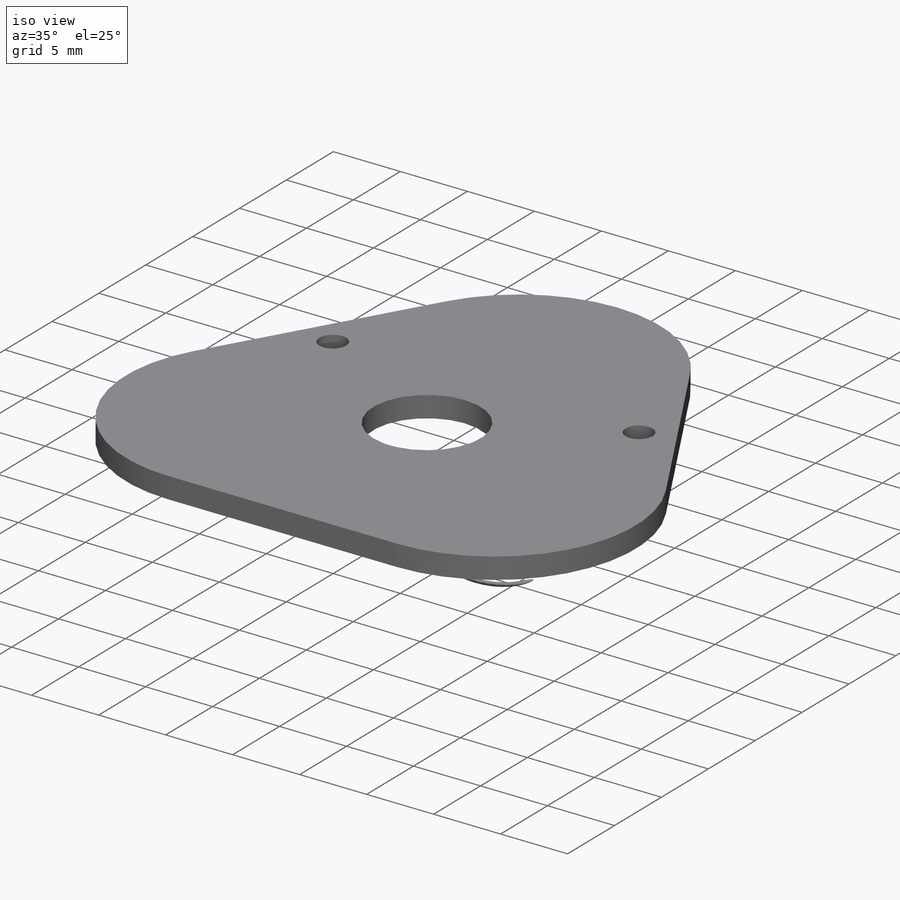
[diagram: iso view]
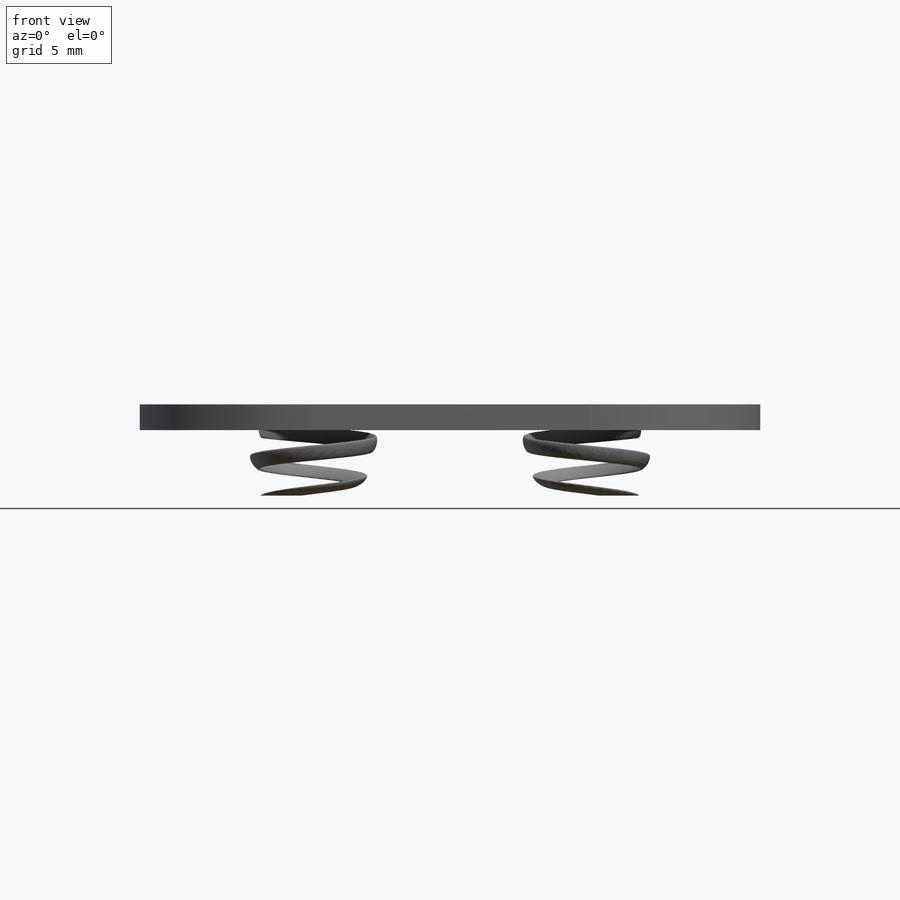
[diagram: front view]
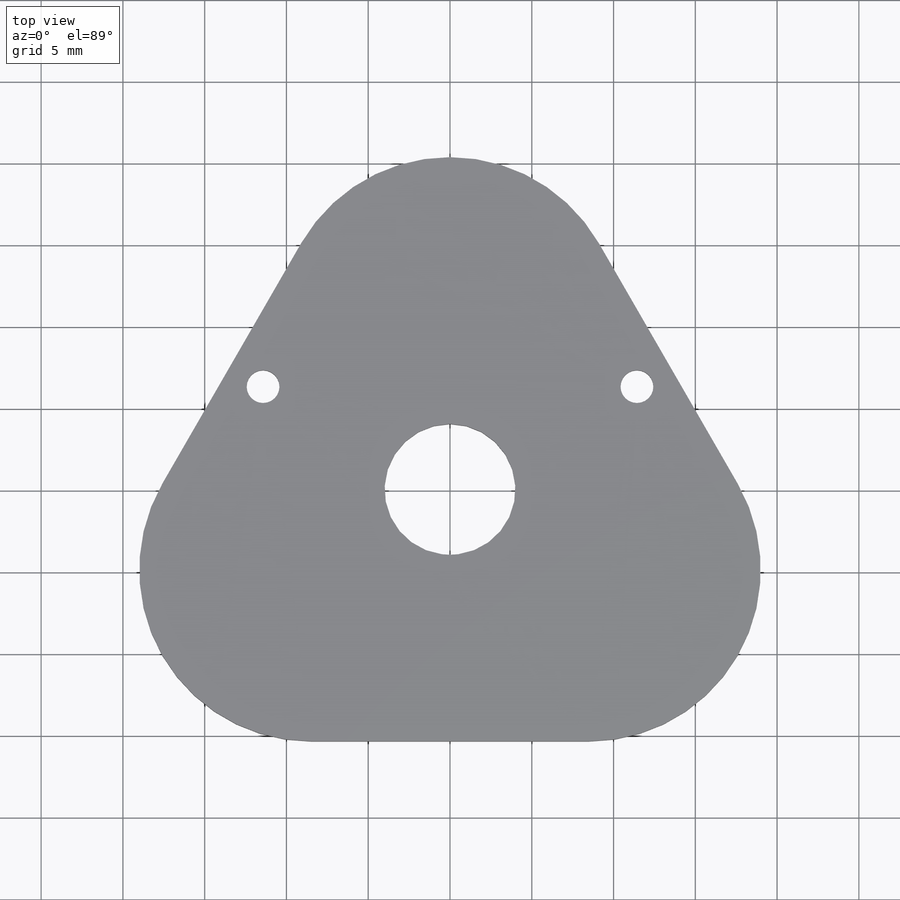
[diagram: top view]
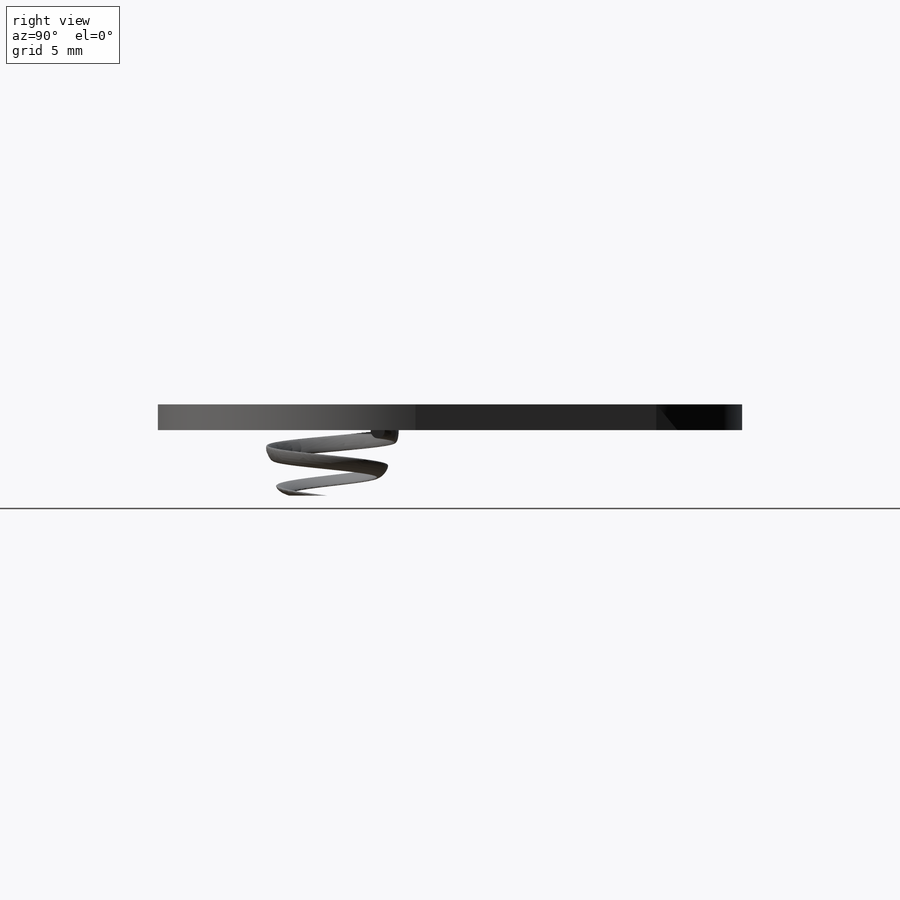
[diagram: right view]
SOLIDWORKS PART (.sldprt)
format: sldprt  version: not decoded by parser v0  size: 978,432 bytes
history: native  units: mm
features: sketch x10, cut_extrude x4, extrude x3, mirror x3, plane x3, material x1, fillet x1, pattern_circular x1, helix x1, sweep x1 (+17 scaffold rows collapsed; 1 parser-record rows omitted)
feature tree (46):
  scaffold x17  (default folders/planes/origin — collapsed)
  material  "Material <not specified>"
  sketch  "Sketch4"  dims[c1.D1=17.0mm c1.D2=17.0mm c1.D3=17.0mm c1.D4=50.0mm c1.D6=46.0mm c1.D7=2.0mm c1.D8=2.0mm c1.D9=2.0mm c1.D11=12.7mm c1.D5=45.0deg c1.D10=~20.32911mm c2.D10=32.5deg c2.D9=21.5mm]
  sketch  "Sketch2"  dims[c1.D1=17.0mm c1.D2=17.0mm c1.D3=17.0mm c1.D4=53.0mm c1.D6=50.0mm c1.D7=2.0mm c1.D8=2.0mm c1.D9=2.0mm c1.D11=12.7mm c1.D12=8.0mm c1.D5=45.0deg c1.D10=~20.32911mm c2.D10=32.5deg c2.D9=21.5mm]
  extrude  "Boss-Extrude1"  Depth=1.6256mm
  sketch  "Sketch3"  dims[D1=9.0mm D2=5.0mm]
  cut_extrude  "Cut-Extrude1"  [1 undecoded]
  sketch  "Sketch5"  dims[D2=8.0mm D1=2.0mm]
  extrude  "Top Main Extrude"  Depth=1.5748mm
  sketch  "Sketch6"  dims[D2=5.0mm D1=2.0mm]
  extrude  "Boss-Extrude3"  [1 undecoded]
  sketch  "Sketch7"  dims[D1=0.5mm D4=0.5mm D2=1.5mm D3=5.0mm D5=6.0mm]
  cut_extrude  "Cut-Extrude2"  [1 undecoded]
  fillet  "Fillet1"  Radius=0.5mm
  mirror  "Mirror1"
  pattern_circular  "CirPattern1"  Count=4 Angle=360deg
  sketch  "Sketch8"  dims[D3=2.0066mm D1=22.86mm D2=21.6916mm]
  cut_extrude  "Top Alignment Holes"  [1 undecoded]
  sketch  "Sketch10"
  parser-record x1  (decoder bookkeeping rows leaked as tree rows — omitted from the tree; the rows remain in map.json)
  helix  "Helix/Spiral1"  Pitch=4.5mm
  plane  "Plane1"
  sketch  "Sketch11"  dims[D1=1.0mm]
  sweep  "Sweep1"
  mirror  "Mirror2"
  plane  "Plane3"
  mirror  "Mirror3"
  plane  "Plane2"  Offset=4mm
  sketch  "Sketch12"  dims[D1=0.0mm]
  cut_extrude  "Cut-Extrude4"  [1 undecoded]
decode coverage: 14 of 24 modeling features carry decoded parameters
note: ~ marks probable driven/reference dimensions
note: 5 parameter values undecoded
summary: no parameter record found for 5 features
note: suppression state not decoded; provenance and decode notes live in map.json
